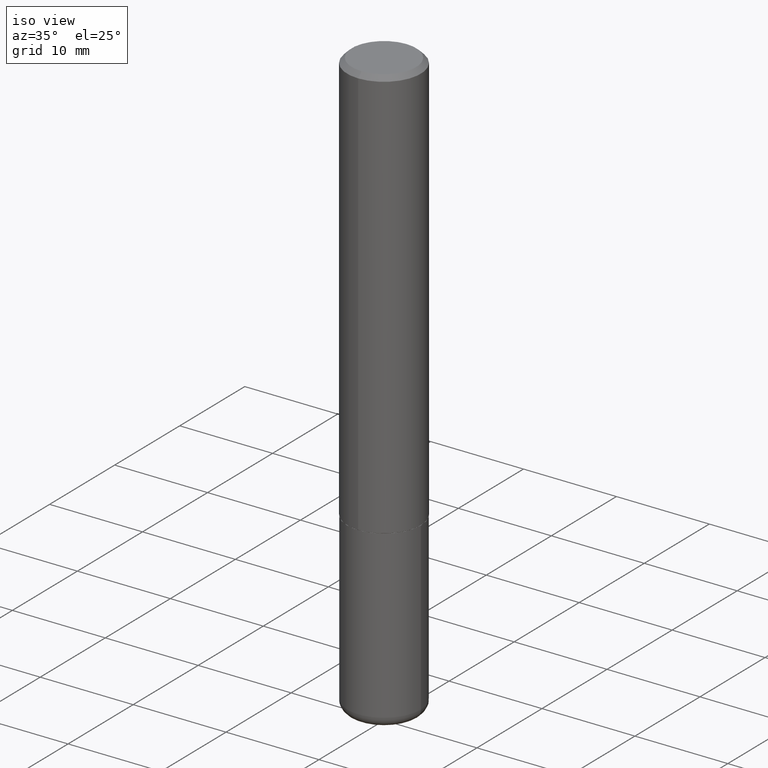
[diagram: clean part render]
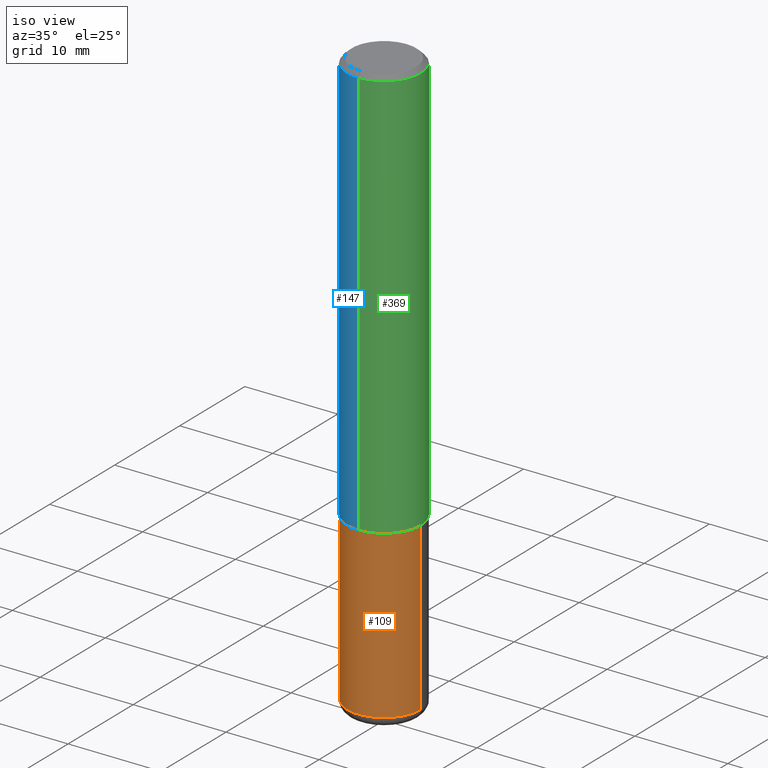
[diagram: same view with three faces highlighted in distinct colors, each labeled with its STEP entity id]
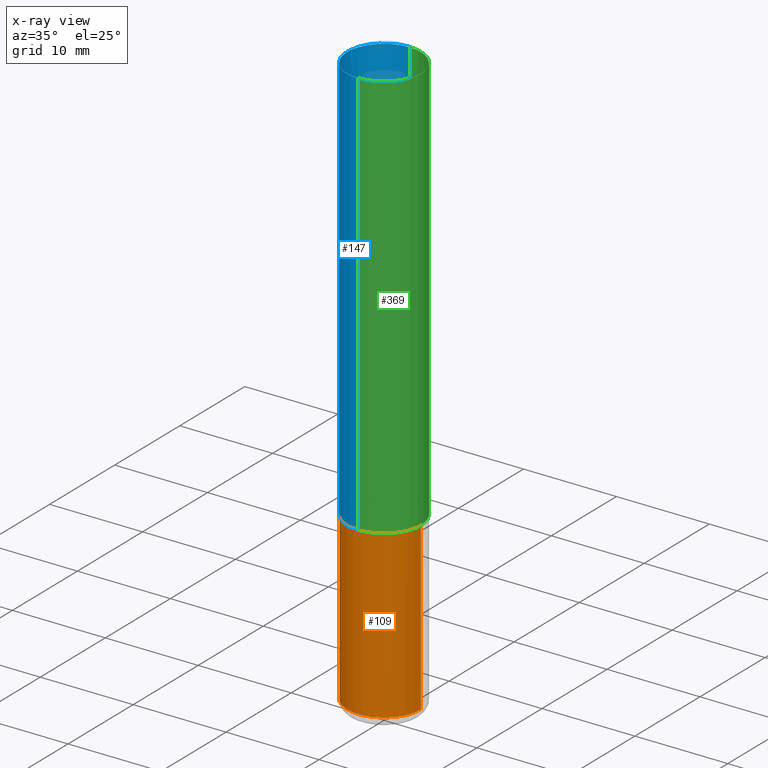
[diagram: x-ray of the same camera — body ghosted, the three highlighted faces saturated]
A machine part, iso view with three faces highlighted in distinct colors.
The next image is the same camera in x-ray (body ghosted, the three faces saturated) — at least one of them is partly hidden behind the body in this view.
Their STEP definitions:

[orange] entity #109 — the highlighted cylindrical surface (partial cylindrical patch) has radius 3.9688 mm, axis along (-0, 0, 1).
#12 = EDGE_CURVE ( 'NONE', #403, #402, #235, .T. ) ;
#21 = AXIS2_PLACEMENT_3D ( 'NONE', #128, #97, #260 ) ;
#24 = CARTESIAN_POINT ( 'NONE',  ( -0.1562500000000000000, -6.230616490292557845E-15, -1.750000000000000222 ) ) ;
#29 = CARTESIAN_POINT ( 'NONE',  ( 0.1562500000000000000, -7.201180261363985422E-15, -1.750000000000000222 ) ) ;
#31 = CARTESIAN_POINT ( 'NONE',  ( -0.1562500000000000000, 1.110223024625156540E-15, -7.685836078523291160E-30 ) ) ;
#32 = CARTESIAN_POINT ( 'NONE',  ( 0.000000000000000000, 0.000000000000000000, 0.000000000000000000 ) ) ;
#46 = CIRCLE ( 'NONE', #21, 0.1562500000000000000 ) ;
#56 = CARTESIAN_POINT ( 'NONE',  ( -0.1562500000000000000, -7.461363662234766770E-15, -2.455000000000000071 ) ) ;
#63 = FACE_OUTER_BOUND ( 'NONE', #278, .T. ) ;
#68 = VECTOR ( 'NONE', #82, 39.37007874015748143 ) ;
#77 = EDGE_CURVE ( 'NONE', #214, #345, #46, .T. ) ;
#82 = DIRECTION ( 'NONE',  ( -2.445468806185136877E-29, 3.491481338843145188E-15, 1.000000000000000000 ) ) ;
#87 = DIRECTION ( 'NONE',  ( 1.000000000000000000, -6.982962677686266711E-15, 4.876176775795936353E-29 ) ) ;
#97 = DIRECTION ( 'NONE',  ( -2.445468806185136597E-29, 3.491481338843145583E-15, 1.000000000000000000 ) ) ;
#109 = ADVANCED_FACE ( 'NONE', ( #63 ), #330, .T. ) ;
#114 = ORIENTED_EDGE ( 'NONE', *, *, #364, .T. ) ;
#117 = DIRECTION ( 'NONE',  ( 1.000000000000000000, -6.982962677686269077E-15, 0.000000000000000000 ) ) ;
#128 = CARTESIAN_POINT ( 'NONE',  ( 4.279570410823989044E-29, -6.110092342975505460E-15, -1.750000000000000222 ) ) ;
#173 = DIRECTION ( 'NONE',  ( -2.445468806185136877E-29, 3.491481338843145188E-15, 1.000000000000000000 ) ) ;
#174 = ORIENTED_EDGE ( 'NONE', *, *, #77, .F. ) ;
#192 = DIRECTION ( 'NONE',  ( -2.445468806185136597E-29, 3.491481338843145583E-15, 1.000000000000000000 ) ) ;
#214 = VERTEX_POINT ( 'NONE', #24 ) ;
#235 = CIRCLE ( 'NONE', #352, 0.1562500000000000000 ) ;
#260 = DIRECTION ( 'NONE',  ( 1.000000000000000000, -6.982962677686269077E-15, 0.000000000000000000 ) ) ;
#275 = ORIENTED_EDGE ( 'NONE', *, *, #413, .F. ) ;
#278 = EDGE_LOOP ( 'NONE', ( #275, #371, #114, #174 ) ) ;
#281 = CARTESIAN_POINT ( 'NONE',  ( 6.003625919184510659E-29, -8.571586686859923311E-15, -2.455000000000000071 ) ) ;
#283 = CARTESIAN_POINT ( 'NONE',  ( 0.1562500000000000000, -1.091087918388479174E-15, 7.619026212181150377E-30 ) ) ;
#330 = CYLINDRICAL_SURFACE ( 'NONE', #375, 0.1562500000000000000 ) ;
#336 = LINE ( 'NONE', #31, #353 ) ;
#345 = VERTEX_POINT ( 'NONE', #29 ) ;
#352 = AXIS2_PLACEMENT_3D ( 'NONE', #281, #408, #117 ) ;
#353 = VECTOR ( 'NONE', #173, 39.37007874015748143 ) ;
#354 = CARTESIAN_POINT ( 'NONE',  ( 0.1562500000000000000, -9.662674605248401695E-15, -2.455000000000000071 ) ) ;
#364 = EDGE_CURVE ( 'NONE', #402, #345, #381, .T. ) ;
#371 = ORIENTED_EDGE ( 'NONE', *, *, #12, .T. ) ;
#375 = AXIS2_PLACEMENT_3D ( 'NONE', #32, #192, #87 ) ;
#381 = LINE ( 'NONE', #283, #68 ) ;
#402 = VERTEX_POINT ( 'NONE', #354 ) ;
#403 = VERTEX_POINT ( 'NONE', #56 ) ;
#408 = DIRECTION ( 'NONE',  ( -2.445468806185136597E-29, 3.491481338843145583E-15, 1.000000000000000000 ) ) ;
#413 = EDGE_CURVE ( 'NONE', #403, #214, #336, .T. ) ;

[blue] entity #147 — the highlighted cylindrical surface (partial cylindrical patch) has radius 3.9688 mm, axis along (-0, 0, 1).
#2 = CARTESIAN_POINT ( 'NONE',  ( 0.000000000000000000, 0.000000000000000000, 0.000000000000000000 ) ) ;
#8 = CARTESIAN_POINT ( 'NONE',  ( 1.110223024625157329E-15, 0.1562500000000001388, -5.459638814658946559E-16 ) ) ;
#19 = CARTESIAN_POINT ( 'NONE',  ( 4.887184266385666173E-31, -6.988337682763458192E-17, -0.02000000000000003511 ) ) ;
#23 = CARTESIAN_POINT ( 'NONE',  ( 1.110223024625179220E-15, 0.1562499999999940881, -1.749000000000000554 ) ) ;
#41 = ORIENTED_EDGE ( 'NONE', *, *, #350, .F. ) ;
#47 = CIRCLE ( 'NONE', #212, 0.1562500000000002220 ) ;
#48 = VERTEX_POINT ( 'NONE', #263 ) ;
#53 = DIRECTION ( 'NONE',  ( -6.982962677686265922E-15, -1.000000000000000000, 3.494168841381722563E-15 ) ) ;
#75 = DIRECTION ( 'NONE',  ( -2.443592133192829145E-29, 3.494168841381722958E-15, 1.000000000000000000 ) ) ;
#88 = VECTOR ( 'NONE', #75, 39.37007874015748143 ) ;
#93 = CARTESIAN_POINT ( 'NONE',  ( 4.273842640954258805E-29, -6.111301303576634099E-15, -1.749000000000000110 ) ) ;
#108 = VERTEX_POINT ( 'NONE', #360 ) ;
#118 = DIRECTION ( 'NONE',  ( -6.982962677686266711E-15, -1.000000000000000000, 3.496765431890256131E-15 ) ) ;
#126 = CIRCLE ( 'NONE', #197, 0.1562500000000000278 ) ;
#130 = CARTESIAN_POINT ( 'NONE',  ( -1.091087918388479962E-15, -0.1562500000000001388, 5.459638814658946559E-16 ) ) ;
#147 = ADVANCED_FACE ( 'NONE', ( #293 ), #160, .T. ) ;
#160 = CYLINDRICAL_SURFACE ( 'NONE', #271, 0.1562500000000001388 ) ;
#172 = LINE ( 'NONE', #8, #88 ) ;
#185 = DIRECTION ( 'NONE',  ( -2.443592133192829145E-29, 3.494168841381722958E-15, 1.000000000000000000 ) ) ;
#190 = DIRECTION ( 'NONE',  ( -2.443592133192829145E-29, 3.494168841381722958E-15, 1.000000000000000000 ) ) ;
#191 = EDGE_CURVE ( 'NONE', #108, #48, #326, .T. ) ;
#197 = AXIS2_PLACEMENT_3D ( 'NONE', #19, #199, #118 ) ;
#199 = DIRECTION ( 'NONE',  ( -2.443592133192829145E-29, 3.494168841381722958E-15, 1.000000000000000000 ) ) ;
#212 = AXIS2_PLACEMENT_3D ( 'NONE', #93, #185, #391 ) ;
#228 = VECTOR ( 'NONE', #190, 39.37007874015748143 ) ;
#249 = EDGE_LOOP ( 'NONE', ( #404, #273, #272, #41 ) ) ;
#263 = CARTESIAN_POINT ( 'NONE',  ( -1.071952812151801412E-15, -0.1562500000000001110, -0.01999999999999948694 ) ) ;
#271 = AXIS2_PLACEMENT_3D ( 'NONE', #2, #415, #53 ) ;
#272 = ORIENTED_EDGE ( 'NONE', *, *, #191, .T. ) ;
#273 = ORIENTED_EDGE ( 'NONE', *, *, #340, .T. ) ;
#288 = EDGE_CURVE ( 'NONE', #315, #410, #172, .T. ) ;
#293 = FACE_OUTER_BOUND ( 'NONE', #249, .T. ) ;
#315 = VERTEX_POINT ( 'NONE', #23 ) ;
#326 = LINE ( 'NONE', #130, #228 ) ;
#340 = EDGE_CURVE ( 'NONE', #315, #108, #47, .T. ) ;
#350 = EDGE_CURVE ( 'NONE', #410, #48, #126, .T. ) ;
#360 = CARTESIAN_POINT ( 'NONE',  ( -1.091087918388437758E-15, -0.1562500000000063283, -1.748999999999999666 ) ) ;
#391 = DIRECTION ( 'NONE',  ( -6.982962677686265922E-15, -1.000000000000000000, 3.496765431890251792E-15 ) ) ;
#399 = CARTESIAN_POINT ( 'NONE',  ( 1.091087918388479765E-15, 0.1562499999999999722, -0.02000000000000057981 ) ) ;
#404 = ORIENTED_EDGE ( 'NONE', *, *, #288, .F. ) ;
#410 = VERTEX_POINT ( 'NONE', #399 ) ;
#415 = DIRECTION ( 'NONE',  ( -2.443592133192829145E-29, 3.494168841381722958E-15, 1.000000000000000000 ) ) ;

[green] entity #369 — the highlighted cylindrical surface (partial cylindrical patch) has radius 3.9688 mm, axis along (-0, 0, 1).
#8 = CARTESIAN_POINT ( 'NONE',  ( 1.110223024625157329E-15, 0.1562500000000001388, -5.459638814658946559E-16 ) ) ;
#23 = CARTESIAN_POINT ( 'NONE',  ( 1.110223024625179220E-15, 0.1562499999999940881, -1.749000000000000554 ) ) ;
#48 = VERTEX_POINT ( 'NONE', #263 ) ;
#52 = DIRECTION ( 'NONE',  ( -2.443592133192829145E-29, 3.494168841381722958E-15, 1.000000000000000000 ) ) ;
#58 = DIRECTION ( 'NONE',  ( -6.982962677686265922E-15, -1.000000000000000000, 3.494168841381722563E-15 ) ) ;
#75 = DIRECTION ( 'NONE',  ( -2.443592133192829145E-29, 3.494168841381722958E-15, 1.000000000000000000 ) ) ;
#80 = ORIENTED_EDGE ( 'NONE', *, *, #288, .T. ) ;
#88 = VECTOR ( 'NONE', #75, 39.37007874015748143 ) ;
#96 = CARTESIAN_POINT ( 'NONE',  ( 0.000000000000000000, 0.000000000000000000, 0.000000000000000000 ) ) ;
#108 = VERTEX_POINT ( 'NONE', #360 ) ;
#110 = CIRCLE ( 'NONE', #116, 0.1562500000000002220 ) ;
#116 = AXIS2_PLACEMENT_3D ( 'NONE', #131, #295, #417 ) ;
#129 = CYLINDRICAL_SURFACE ( 'NONE', #181, 0.1562500000000001388 ) ;
#130 = CARTESIAN_POINT ( 'NONE',  ( -1.091087918388479962E-15, -0.1562500000000001388, 5.459638814658946559E-16 ) ) ;
#131 = CARTESIAN_POINT ( 'NONE',  ( 4.273842640954258805E-29, -6.111301303576634099E-15, -1.749000000000000110 ) ) ;
#161 = EDGE_CURVE ( 'NONE', #108, #315, #110, .T. ) ;
#170 = AXIS2_PLACEMENT_3D ( 'NONE', #328, #356, #258 ) ;
#172 = LINE ( 'NONE', #8, #88 ) ;
#180 = EDGE_LOOP ( 'NONE', ( #347, #80, #308, #405 ) ) ;
#181 = AXIS2_PLACEMENT_3D ( 'NONE', #96, #52, #58 ) ;
#190 = DIRECTION ( 'NONE',  ( -2.443592133192829145E-29, 3.494168841381722958E-15, 1.000000000000000000 ) ) ;
#191 = EDGE_CURVE ( 'NONE', #108, #48, #326, .T. ) ;
#228 = VECTOR ( 'NONE', #190, 39.37007874015748143 ) ;
#258 = DIRECTION ( 'NONE',  ( -6.982962677686266711E-15, -1.000000000000000000, 3.496765431890256131E-15 ) ) ;
#263 = CARTESIAN_POINT ( 'NONE',  ( -1.071952812151801412E-15, -0.1562500000000001110, -0.01999999999999948694 ) ) ;
#267 = CIRCLE ( 'NONE', #170, 0.1562500000000000278 ) ;
#288 = EDGE_CURVE ( 'NONE', #315, #410, #172, .T. ) ;
#295 = DIRECTION ( 'NONE',  ( -2.443592133192829145E-29, 3.494168841381722958E-15, 1.000000000000000000 ) ) ;
#308 = ORIENTED_EDGE ( 'NONE', *, *, #343, .F. ) ;
#315 = VERTEX_POINT ( 'NONE', #23 ) ;
#326 = LINE ( 'NONE', #130, #228 ) ;
#328 = CARTESIAN_POINT ( 'NONE',  ( 4.887184266385666173E-31, -6.988337682763458192E-17, -0.02000000000000003511 ) ) ;
#343 = EDGE_CURVE ( 'NONE', #48, #410, #267, .T. ) ;
#347 = ORIENTED_EDGE ( 'NONE', *, *, #161, .T. ) ;
#356 = DIRECTION ( 'NONE',  ( -2.443592133192829145E-29, 3.494168841381722958E-15, 1.000000000000000000 ) ) ;
#359 = FACE_OUTER_BOUND ( 'NONE', #180, .T. ) ;
#360 = CARTESIAN_POINT ( 'NONE',  ( -1.091087918388437758E-15, -0.1562500000000063283, -1.748999999999999666 ) ) ;
#369 = ADVANCED_FACE ( 'NONE', ( #359 ), #129, .T. ) ;
#399 = CARTESIAN_POINT ( 'NONE',  ( 1.091087918388479765E-15, 0.1562499999999999722, -0.02000000000000057981 ) ) ;
#405 = ORIENTED_EDGE ( 'NONE', *, *, #191, .F. ) ;
#410 = VERTEX_POINT ( 'NONE', #399 ) ;
#417 = DIRECTION ( 'NONE',  ( -6.982962677686265922E-15, -1.000000000000000000, 3.496765431890251792E-15 ) ) ;